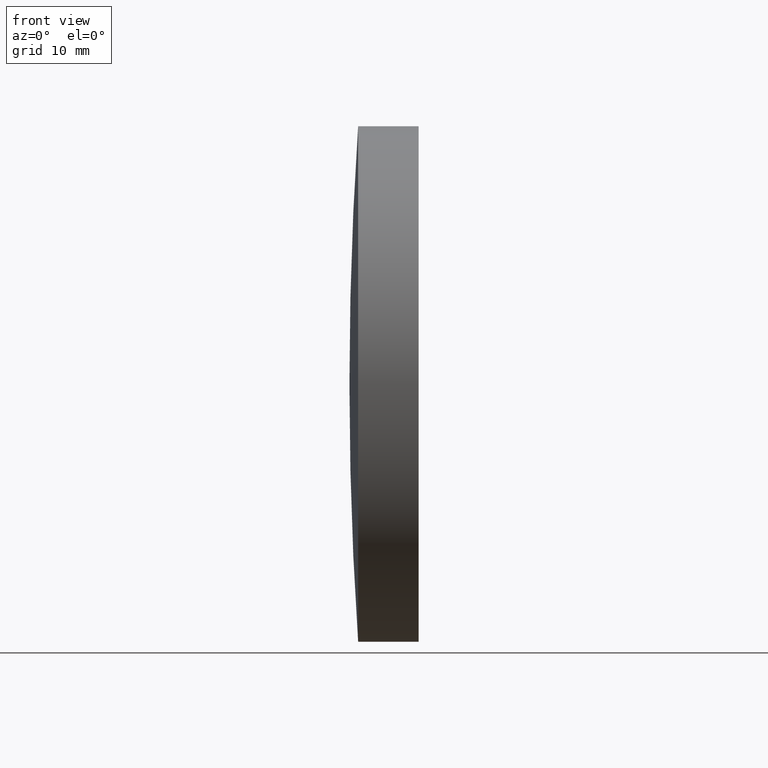
[diagram: clean part render]
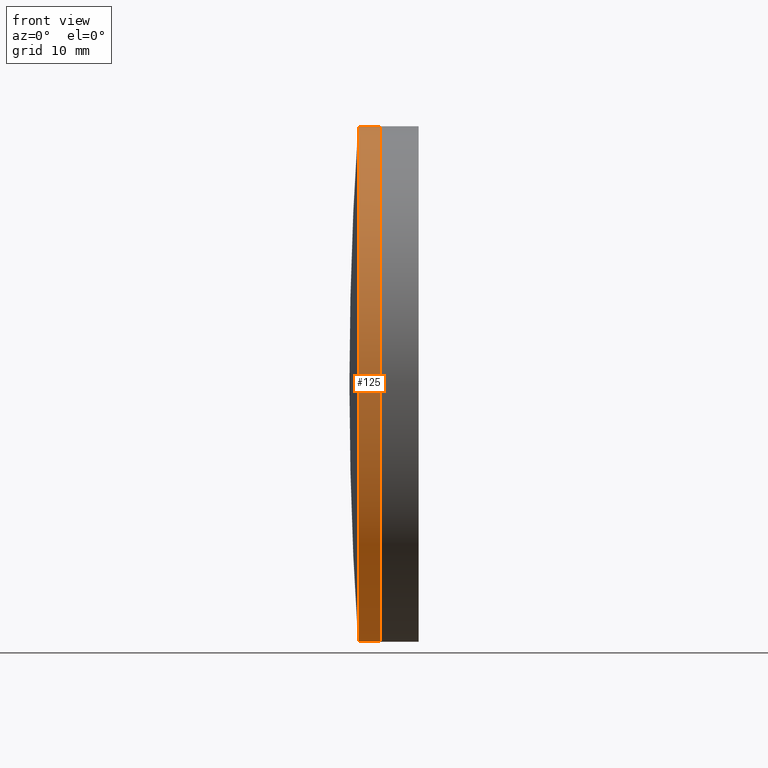
[diagram: same view with one face highlighted and labeled with its STEP entity id]
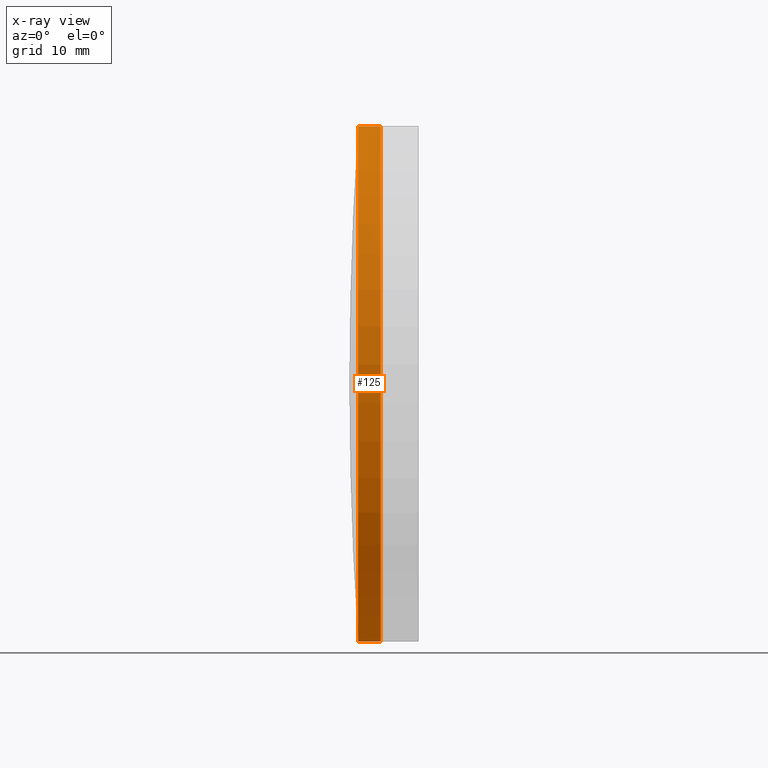
[diagram: x-ray of the same camera — body ghosted, the highlighted face saturated]
A machine part, front view. The second image highlights one B-rep face of the part: STEP entity #125.
The next image is the same camera in x-ray: the body ghosted, the highlighted face saturated — about 0% of this face is hidden behind the body in this view.
In plain terms, the highlighted cylindrical surface (partial cylindrical patch) has radius 25.4 mm, axis along (-1, -0, -0).
Its self-contained STEP definition (entity closure, byte-faithful):
#3 = CARTESIAN_POINT ( 'NONE',  ( -402.0212655728769300, 0.0000000000000000000, 0.0000000000000000000 ) ) ;
#7 = CARTESIAN_POINT ( 'NONE',  ( -31.36118293043882600, 0.0000000000000000000, 25.39999999999999100 ) ) ;
#13 = DIRECTION ( 'NONE',  ( -1.000000000000000000, -0.0000000000000000000, -0.0000000000000000000 ) ) ;
#19 = AXIS2_PLACEMENT_3D ( 'NONE', #66, #219, #36 ) ;
#21 = VECTOR ( 'NONE', #330, 1000.000000000000000 ) ;
#27 = FACE_OUTER_BOUND ( 'NONE', #167, .T. ) ;
#36 = DIRECTION ( 'NONE',  ( 0.0000000000000000000, 0.0000000000000000000, 1.000000000000000000 ) ) ;
#41 = EDGE_CURVE ( 'NONE', #301, #227, #117, .T. ) ;
#50 = CIRCLE ( 'NONE', #19, 25.39999999999999100 ) ;
#66 = CARTESIAN_POINT ( 'NONE',  ( -31.36118293043882600, 0.0000000000000000000, 0.0000000000000000000 ) ) ;
#94 = CARTESIAN_POINT ( 'NONE',  ( -33.59384532777775700, 3.110602869834250000E-015, -25.39999999999978500 ) ) ;
#112 = EDGE_CURVE ( 'NONE', #221, #301, #244, .T. ) ;
#117 = CIRCLE ( 'NONE', #146, 25.39999999999999100 ) ;
#118 = CARTESIAN_POINT ( 'NONE',  ( -33.59384532777775700, 0.0000000000000000000, 25.39999999999977800 ) ) ;
#124 = EDGE_CURVE ( 'NONE', #143, #227, #339, .T. ) ;
#125 = ADVANCED_FACE ( 'NONE', ( #27 ), #335, .T. ) ;
#130 = ORIENTED_EDGE ( 'NONE', *, *, #41, .F. ) ;
#142 = CARTESIAN_POINT ( 'NONE',  ( -31.36118293043882600, 3.110602869834276100E-015, -25.39999999999999100 ) ) ;
#143 = VERTEX_POINT ( 'NONE', #7 ) ;
#146 = AXIS2_PLACEMENT_3D ( 'NONE', #284, #214, #299 ) ;
#150 = ORIENTED_EDGE ( 'NONE', *, *, #112, .F. ) ;
#152 = ORIENTED_EDGE ( 'NONE', *, *, #172, .T. ) ;
#167 = EDGE_LOOP ( 'NONE', ( #150, #152, #213, #130 ) ) ;
#172 = EDGE_CURVE ( 'NONE', #221, #143, #50, .T. ) ;
#186 = CARTESIAN_POINT ( 'NONE',  ( -402.0212655728769300, 0.0000000000000000000, 25.39999999999999100 ) ) ;
#213 = ORIENTED_EDGE ( 'NONE', *, *, #124, .T. ) ;
#214 = DIRECTION ( 'NONE',  ( -1.000000000000000000, -0.0000000000000000000, -0.0000000000000000000 ) ) ;
#219 = DIRECTION ( 'NONE',  ( -1.000000000000000000, -0.0000000000000000000, -0.0000000000000000000 ) ) ;
#221 = VERTEX_POINT ( 'NONE', #142 ) ;
#222 = DIRECTION ( 'NONE',  ( 0.0000000000000000000, 0.0000000000000000000, 1.000000000000000000 ) ) ;
#227 = VERTEX_POINT ( 'NONE', #118 ) ;
#244 = LINE ( 'NONE', #311, #266 ) ;
#254 = DIRECTION ( 'NONE',  ( -1.000000000000000000, -0.0000000000000000000, -0.0000000000000000000 ) ) ;
#266 = VECTOR ( 'NONE', #254, 1000.000000000000000 ) ;
#284 = CARTESIAN_POINT ( 'NONE',  ( -33.59384532777775700, 0.0000000000000000000, 0.0000000000000000000 ) ) ;
#299 = DIRECTION ( 'NONE',  ( 0.0000000000000000000, 0.0000000000000000000, 1.000000000000000000 ) ) ;
#301 = VERTEX_POINT ( 'NONE', #94 ) ;
#311 = CARTESIAN_POINT ( 'NONE',  ( -402.0212655728769300, 3.110602869834276100E-015, -25.39999999999999100 ) ) ;
#320 = AXIS2_PLACEMENT_3D ( 'NONE', #3, #13, #222 ) ;
#330 = DIRECTION ( 'NONE',  ( -1.000000000000000000, -0.0000000000000000000, -0.0000000000000000000 ) ) ;
#335 = CYLINDRICAL_SURFACE ( 'NONE', #320, 25.39999999999999100 ) ;
#339 = LINE ( 'NONE', #186, #21 ) ;